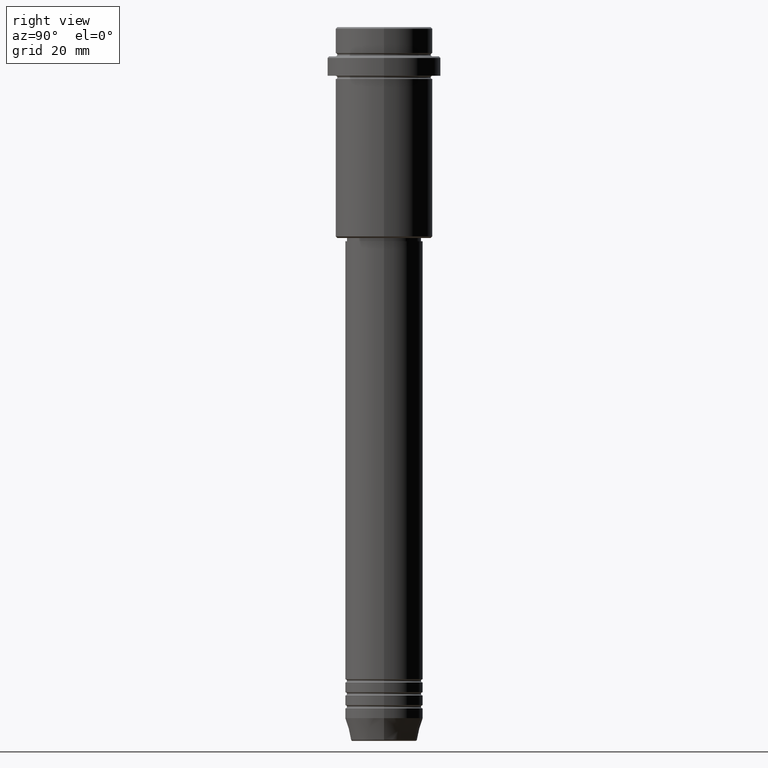
[diagram: clean part render]
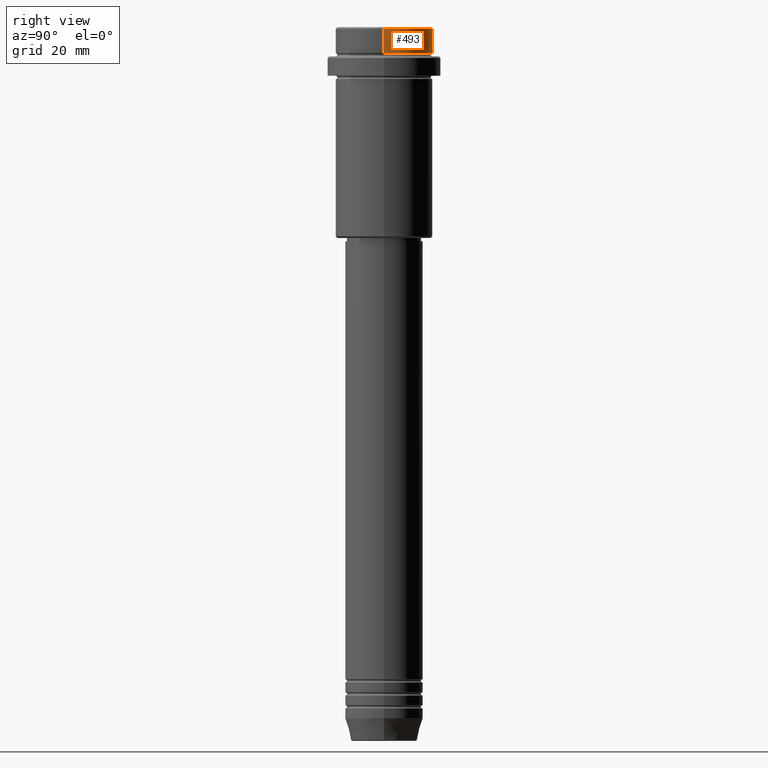
[diagram: same view with one face highlighted and labeled with its STEP entity id]
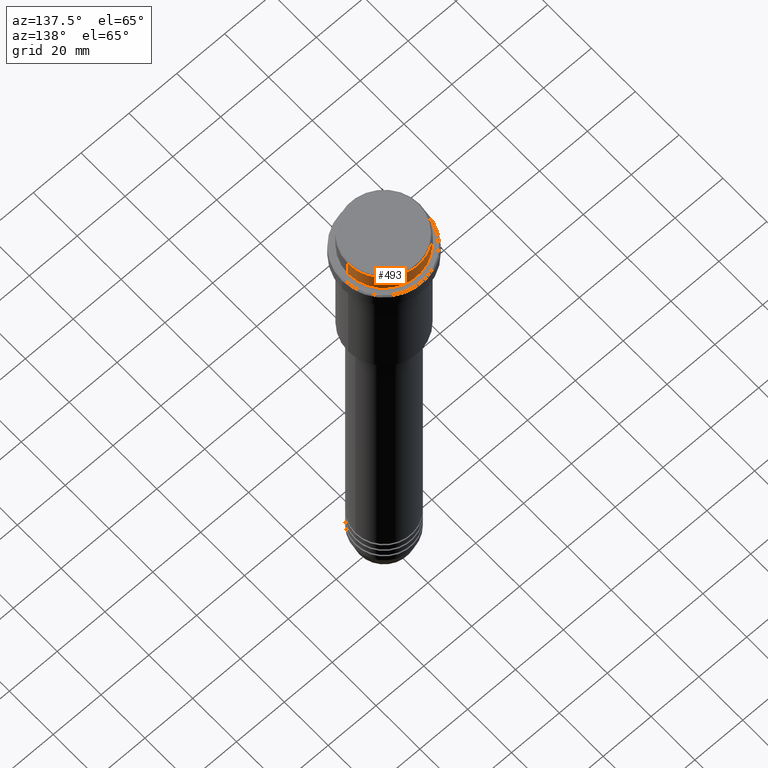
[diagram: same view with one face highlighted and labeled with its STEP entity id]
A machine part, right view. The second image highlights one B-rep face of the part: STEP entity #493.
A second angle (auxiliary view) of the same face is appended — the face is thin or edge-on in the first view.
In plain terms, the highlighted cylindrical surface (partial cylindrical patch) has radius 15 mm, axis along (-0, -0, 1).
Its self-contained STEP definition (entity closure, byte-faithful):
#9 = ORIENTED_EDGE ( 'NONE', *, *, #177, .T. ) ;
#48 = DIRECTION ( 'NONE',  ( -0.000000000000000000, -0.000000000000000000, 1.000000000000000000 ) ) ;
#177 = EDGE_CURVE ( 'NONE', #928, #654, #708, .T. ) ;
#213 = ORIENTED_EDGE ( 'NONE', *, *, #1037, .T. ) ;
#251 = CARTESIAN_POINT ( 'NONE',  ( -15.00000000000000000, 1.836970198721029589E-15, 0.000000000000000000 ) ) ;
#333 = CARTESIAN_POINT ( 'NONE',  ( 0.000000000000000000, 0.000000000000000000, -0.5000000000000108802 ) ) ;
#340 = AXIS2_PLACEMENT_3D ( 'NONE', #333, #1093, #1210 ) ;
#345 = VECTOR ( 'NONE', #822, 1000.000000000000000 ) ;
#355 = VERTEX_POINT ( 'NONE', #549 ) ;
#361 = EDGE_CURVE ( 'NONE', #814, #928, #788, .T. ) ;
#485 = CARTESIAN_POINT ( 'NONE',  ( 0.000000000000000000, 0.000000000000000000, -7.999999999999998224 ) ) ;
#493 = ADVANCED_FACE ( 'NONE', ( #646 ), #844, .T. ) ;
#499 = CIRCLE ( 'NONE', #1196, 15.00000000000000000 ) ;
#523 = CARTESIAN_POINT ( 'NONE',  ( 0.000000000000000000, 0.000000000000000000, 0.000000000000000000 ) ) ;
#541 = DIRECTION ( 'NONE',  ( -0.000000000000000000, -0.000000000000000000, 1.000000000000000000 ) ) ;
#549 = CARTESIAN_POINT ( 'NONE',  ( 15.00000000000000000, 0.000000000000000000, -7.999999999999998224 ) ) ;
#559 = VECTOR ( 'NONE', #541, 1000.000000000000000 ) ;
#574 = CARTESIAN_POINT ( 'NONE',  ( 15.00000000000000000, 0.000000000000000000, -0.5000000000000108802 ) ) ;
#604 = ORIENTED_EDGE ( 'NONE', *, *, #361, .T. ) ;
#633 = DIRECTION ( 'NONE',  ( 1.000000000000000000, 0.000000000000000000, 0.000000000000000000 ) ) ;
#646 = FACE_OUTER_BOUND ( 'NONE', #1183, .T. ) ;
#654 = VERTEX_POINT ( 'NONE', #574 ) ;
#660 = DIRECTION ( 'NONE',  ( 1.000000000000000000, 0.000000000000000000, 0.000000000000000000 ) ) ;
#708 = CIRCLE ( 'NONE', #340, 15.00000000000000000 ) ;
#788 = LINE ( 'NONE', #251, #559 ) ;
#795 = CARTESIAN_POINT ( 'NONE',  ( -15.00000000000000000, 1.836970198721029589E-15, -0.5000000000000108802 ) ) ;
#814 = VERTEX_POINT ( 'NONE', #1249 ) ;
#822 = DIRECTION ( 'NONE',  ( -0.000000000000000000, -0.000000000000000000, 1.000000000000000000 ) ) ;
#844 = CYLINDRICAL_SURFACE ( 'NONE', #958, 15.00000000000000000 ) ;
#928 = VERTEX_POINT ( 'NONE', #795 ) ;
#937 = DIRECTION ( 'NONE',  ( -0.000000000000000000, -0.000000000000000000, 1.000000000000000000 ) ) ;
#958 = AXIS2_PLACEMENT_3D ( 'NONE', #523, #937, #660 ) ;
#1037 = EDGE_CURVE ( 'NONE', #355, #814, #499, .T. ) ;
#1093 = DIRECTION ( 'NONE',  ( 0.000000000000000000, 0.000000000000000000, -1.000000000000000000 ) ) ;
#1183 = EDGE_LOOP ( 'NONE', ( #213, #604, #9, #1219 ) ) ;
#1196 = AXIS2_PLACEMENT_3D ( 'NONE', #485, #48, #633 ) ;
#1210 = DIRECTION ( 'NONE',  ( 1.000000000000000000, 0.000000000000000000, 0.000000000000000000 ) ) ;
#1219 = ORIENTED_EDGE ( 'NONE', *, *, #1416, .F. ) ;
#1249 = CARTESIAN_POINT ( 'NONE',  ( -15.00000000000000000, 1.836970198721029589E-15, -7.999999999999998224 ) ) ;
#1370 = LINE ( 'NONE', #1385, #345 ) ;
#1385 = CARTESIAN_POINT ( 'NONE',  ( 15.00000000000000000, 0.000000000000000000, 0.000000000000000000 ) ) ;
#1416 = EDGE_CURVE ( 'NONE', #355, #654, #1370, .T. ) ;